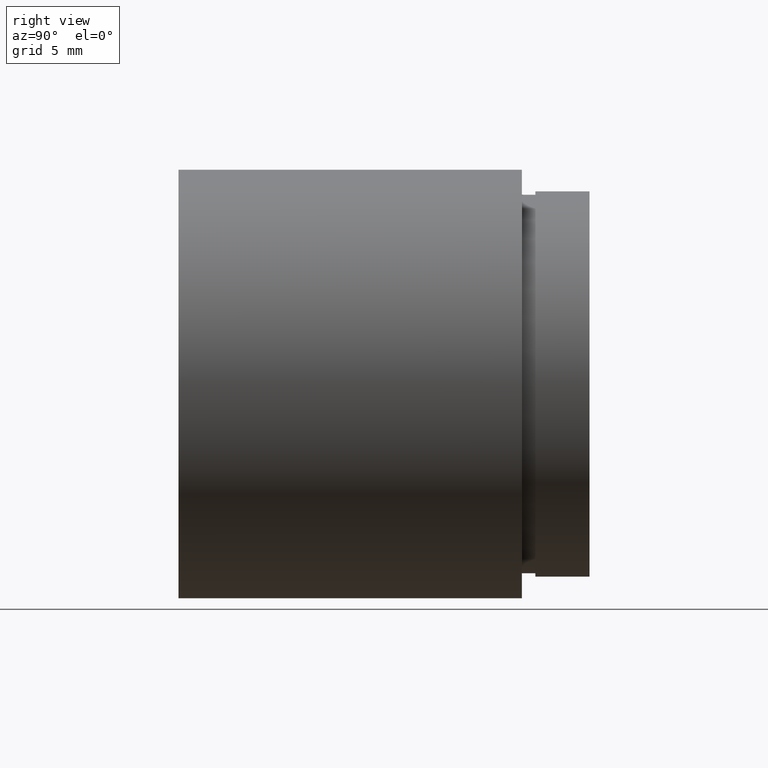
[diagram: clean part render]
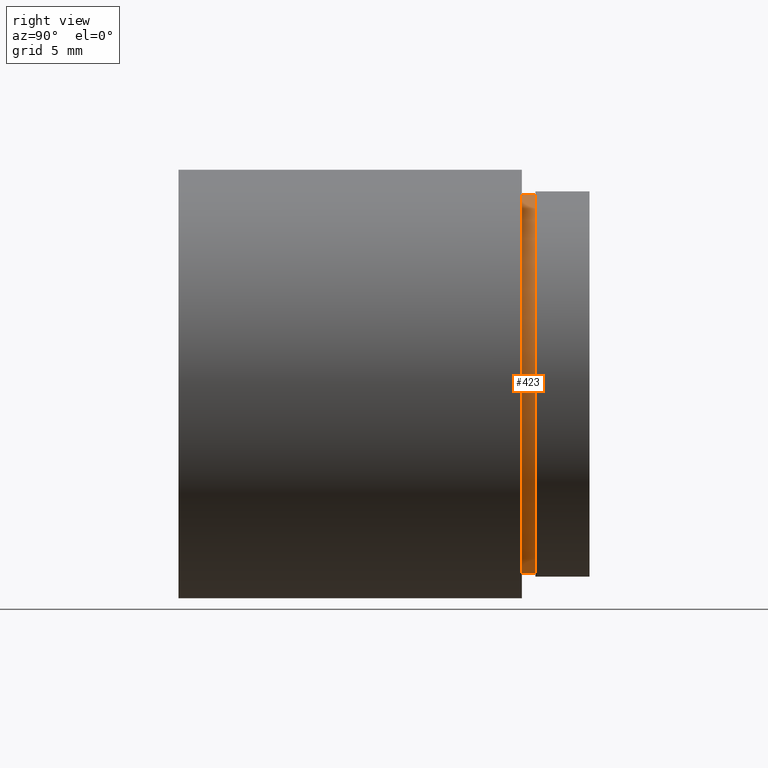
[diagram: same view with one face highlighted and labeled with its STEP entity id]
A machine part, right view. The second image highlights one B-rep face of the part: STEP entity #423.
In plain terms, the highlighted cylindrical surface (partial cylindrical patch) has radius 14 mm, axis along (-0, 1, -0).
Its self-contained STEP definition (entity closure, byte-faithful):
#30 = FACE_OUTER_BOUND ( 'NONE', #476, .T. ) ;
#38 = DIRECTION ( 'NONE',  ( 0.0000000000000000000, 0.0000000000000000000, 1.000000000000000000 ) ) ;
#57 = AXIS2_PLACEMENT_3D ( 'NONE', #450, #158, #163 ) ;
#62 = DIRECTION ( 'NONE',  ( -0.0000000000000000000, 1.000000000000000000, -0.0000000000000000000 ) ) ;
#68 = CARTESIAN_POINT ( 'NONE',  ( 1.714505518806296600E-015, 161.3761669434274500, -14.00000000000001800 ) ) ;
#74 = VECTOR ( 'NONE', #597, 1000.000000000000000 ) ;
#80 = LINE ( 'NONE', #506, #74 ) ;
#91 = CYLINDRICAL_SURFACE ( 'NONE', #408, 14.00000000000001800 ) ;
#107 = CARTESIAN_POINT ( 'NONE',  ( 0.0000000000000000000, 161.3761669434274500, 0.0000000000000000000 ) ) ;
#109 = CARTESIAN_POINT ( 'NONE',  ( 1.714505518806296600E-015, 25.39999999999997700, -14.00000000000001800 ) ) ;
#115 = EDGE_CURVE ( 'NONE', #546, #536, #464, .T. ) ;
#158 = DIRECTION ( 'NONE',  ( -0.0000000000000000000, 1.000000000000000000, -0.0000000000000000000 ) ) ;
#163 = DIRECTION ( 'NONE',  ( 0.0000000000000000000, 0.0000000000000000000, 1.000000000000000000 ) ) ;
#166 = LINE ( 'NONE', #68, #199 ) ;
#180 = VERTEX_POINT ( 'NONE', #270 ) ;
#199 = VECTOR ( 'NONE', #355, 1000.000000000000000 ) ;
#221 = ORIENTED_EDGE ( 'NONE', *, *, #525, .F. ) ;
#224 = AXIS2_PLACEMENT_3D ( 'NONE', #372, #520, #38 ) ;
#249 = CARTESIAN_POINT ( 'NONE',  ( 1.714505518806296600E-015, 26.39999999999997700, -14.00000000000001800 ) ) ;
#266 = ORIENTED_EDGE ( 'NONE', *, *, #529, .T. ) ;
#270 = CARTESIAN_POINT ( 'NONE',  ( 0.0000000000000000000, 26.39999999999997700, 14.00000000000001800 ) ) ;
#308 = ORIENTED_EDGE ( 'NONE', *, *, #115, .T. ) ;
#355 = DIRECTION ( 'NONE',  ( -0.0000000000000000000, 1.000000000000000000, -0.0000000000000000000 ) ) ;
#372 = CARTESIAN_POINT ( 'NONE',  ( 0.0000000000000000000, 25.39999999999997700, 0.0000000000000000000 ) ) ;
#392 = DIRECTION ( 'NONE',  ( 0.0000000000000000000, 0.0000000000000000000, 1.000000000000000000 ) ) ;
#394 = CARTESIAN_POINT ( 'NONE',  ( 0.0000000000000000000, 25.39999999999997700, 14.00000000000001800 ) ) ;
#408 = AXIS2_PLACEMENT_3D ( 'NONE', #107, #62, #392 ) ;
#411 = VERTEX_POINT ( 'NONE', #249 ) ;
#418 = CIRCLE ( 'NONE', #57, 14.00000000000001800 ) ;
#423 = ADVANCED_FACE ( 'NONE', ( #30 ), #91, .T. ) ;
#450 = CARTESIAN_POINT ( 'NONE',  ( 0.0000000000000000000, 26.39999999999997700, 0.0000000000000000000 ) ) ;
#464 = CIRCLE ( 'NONE', #224, 14.00000000000001800 ) ;
#476 = EDGE_LOOP ( 'NONE', ( #308, #266, #221, #563 ) ) ;
#506 = CARTESIAN_POINT ( 'NONE',  ( 0.0000000000000000000, 161.3761669434274500, 14.00000000000001800 ) ) ;
#520 = DIRECTION ( 'NONE',  ( -0.0000000000000000000, 1.000000000000000000, -0.0000000000000000000 ) ) ;
#525 = EDGE_CURVE ( 'NONE', #180, #411, #418, .T. ) ;
#529 = EDGE_CURVE ( 'NONE', #536, #411, #166, .T. ) ;
#536 = VERTEX_POINT ( 'NONE', #109 ) ;
#546 = VERTEX_POINT ( 'NONE', #394 ) ;
#554 = EDGE_CURVE ( 'NONE', #546, #180, #80, .T. ) ;
#563 = ORIENTED_EDGE ( 'NONE', *, *, #554, .F. ) ;
#597 = DIRECTION ( 'NONE',  ( -0.0000000000000000000, 1.000000000000000000, -0.0000000000000000000 ) ) ;